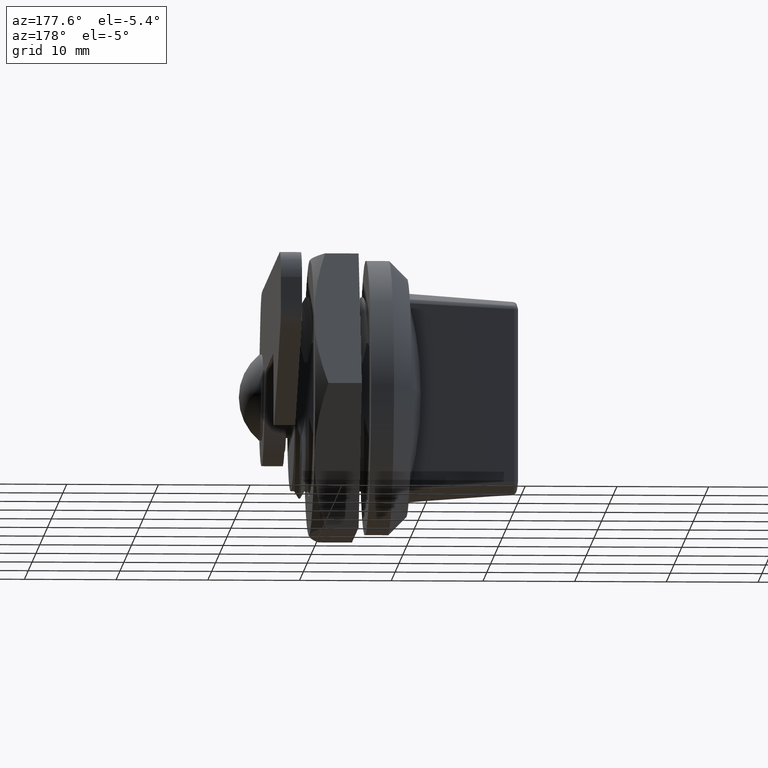
[diagram: clean part render]
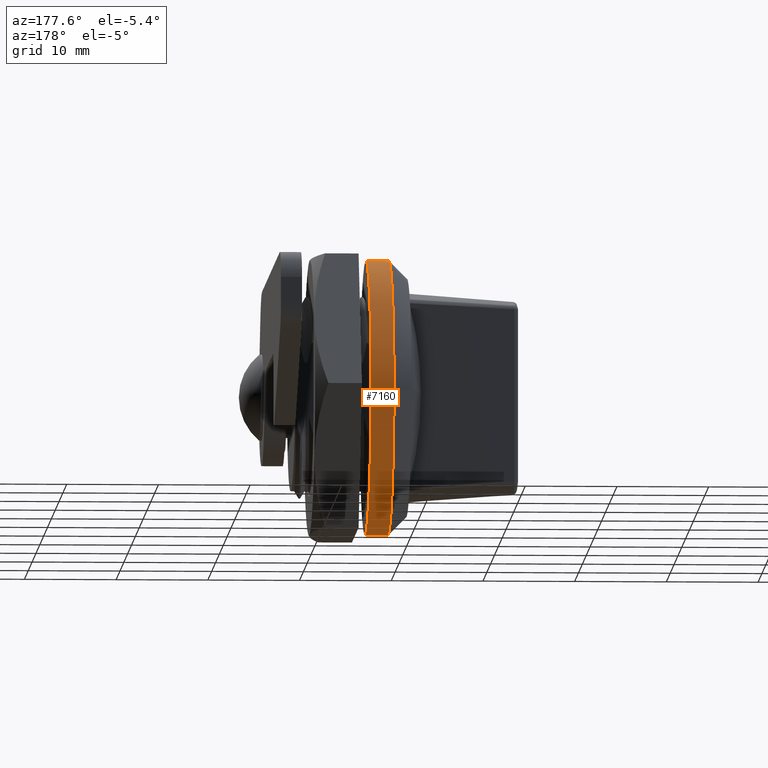
[diagram: same view with one face highlighted and labeled with its STEP entity id]
A machine part, auxiliary view. The second image highlights one B-rep face of the part: STEP entity #7160.
In plain terms, the highlighted cylindrical surface (partial cylindrical patch) has radius 15 mm, axis along (-1, 0, 0).
Its self-contained STEP definition (entity closure, byte-faithful):
#1670 = AXIS2_PLACEMENT_3D ( 'NONE', #4454, #7143, #24376 ) ;
#1761 = ORIENTED_EDGE ( 'NONE', *, *, #8396, .T. ) ;
#2158 = CARTESIAN_POINT ( 'NONE',  ( 2.000000000000000000, 0.0000000000000000000, 0.0000000000000000000 ) ) ;
#3340 = CARTESIAN_POINT ( 'NONE',  ( 4.499999999999840100, 0.0000000000000000000, 0.0000000000000000000 ) ) ;
#3395 = ORIENTED_EDGE ( 'NONE', *, *, #5731, .T. ) ;
#4328 = DIRECTION ( 'NONE',  ( 0.0000000000000000000, 0.0000000000000000000, 1.000000000000000000 ) ) ;
#4454 = CARTESIAN_POINT ( 'NONE',  ( 1000.000000000000000, 0.0000000000000000000, 0.0000000000000000000 ) ) ;
#5484 = DIRECTION ( 'NONE',  ( 0.0000000000000000000, 0.0000000000000000000, -1.000000000000000000 ) ) ;
#5731 = EDGE_CURVE ( 'NONE', #24278, #13594, #15598, .T. ) ;
#6524 = CARTESIAN_POINT ( 'NONE',  ( 4.499999999999840100, 0.0000000000000000000, 15.00000000000000000 ) ) ;
#6974 = VERTEX_POINT ( 'NONE', #6524 ) ;
#7143 = DIRECTION ( 'NONE',  ( -1.000000000000000000, 0.0000000000000000000, 0.0000000000000000000 ) ) ;
#7160 = ADVANCED_FACE ( 'NONE', ( #20322 ), #21271, .T. ) ;
#7366 = AXIS2_PLACEMENT_3D ( 'NONE', #3340, #18425, #5484 ) ;
#7714 = VECTOR ( 'NONE', #11823, 1000.000000000000000 ) ;
#8396 = EDGE_CURVE ( 'NONE', #13594, #21207, #20250, .T. ) ;
#11823 = DIRECTION ( 'NONE',  ( -1.000000000000000000, 0.0000000000000000000, 0.0000000000000000000 ) ) ;
#13461 = LINE ( 'NONE', #24790, #7714 ) ;
#13594 = VERTEX_POINT ( 'NONE', #26023 ) ;
#15598 = LINE ( 'NONE', #22774, #27814 ) ;
#17259 = DIRECTION ( 'NONE',  ( 1.000000000000000000, -0.0000000000000000000, -0.0000000000000000000 ) ) ;
#18425 = DIRECTION ( 'NONE',  ( -1.000000000000000000, -0.0000000000000000000, -0.0000000000000000000 ) ) ;
#18500 = AXIS2_PLACEMENT_3D ( 'NONE', #2158, #17259, #4328 ) ;
#18528 = CIRCLE ( 'NONE', #7366, 15.00000000000000000 ) ;
#20250 = CIRCLE ( 'NONE', #18500, 15.00000000000000000 ) ;
#20322 = FACE_OUTER_BOUND ( 'NONE', #24141, .T. ) ;
#20416 = CARTESIAN_POINT ( 'NONE',  ( 2.000000000000000000, 0.0000000000000000000, 15.00000000000000000 ) ) ;
#20679 = DIRECTION ( 'NONE',  ( -1.000000000000000000, 0.0000000000000000000, 0.0000000000000000000 ) ) ;
#21121 = EDGE_CURVE ( 'NONE', #6974, #21207, #13461, .T. ) ;
#21207 = VERTEX_POINT ( 'NONE', #20416 ) ;
#21271 = CYLINDRICAL_SURFACE ( 'NONE', #1670, 15.00000000000000000 ) ;
#21283 = EDGE_CURVE ( 'NONE', #6974, #24278, #18528, .T. ) ;
#22774 = CARTESIAN_POINT ( 'NONE',  ( 1000.000000000000000, 1.836970198721029600E-015, -15.00000000000000000 ) ) ;
#23488 = ORIENTED_EDGE ( 'NONE', *, *, #21283, .T. ) ;
#23786 = ORIENTED_EDGE ( 'NONE', *, *, #21121, .F. ) ;
#24141 = EDGE_LOOP ( 'NONE', ( #23488, #3395, #1761, #23786 ) ) ;
#24278 = VERTEX_POINT ( 'NONE', #27731 ) ;
#24376 = DIRECTION ( 'NONE',  ( 0.0000000000000000000, 0.0000000000000000000, 1.000000000000000000 ) ) ;
#24790 = CARTESIAN_POINT ( 'NONE',  ( 1000.000000000000000, 0.0000000000000000000, 15.00000000000000000 ) ) ;
#26023 = CARTESIAN_POINT ( 'NONE',  ( 2.000000000000000000, 1.836970198721029600E-015, -15.00000000000000000 ) ) ;
#27731 = CARTESIAN_POINT ( 'NONE',  ( 4.499999999999840100, 1.836970198721029600E-015, -15.00000000000000000 ) ) ;
#27814 = VECTOR ( 'NONE', #20679, 1000.000000000000000 ) ;